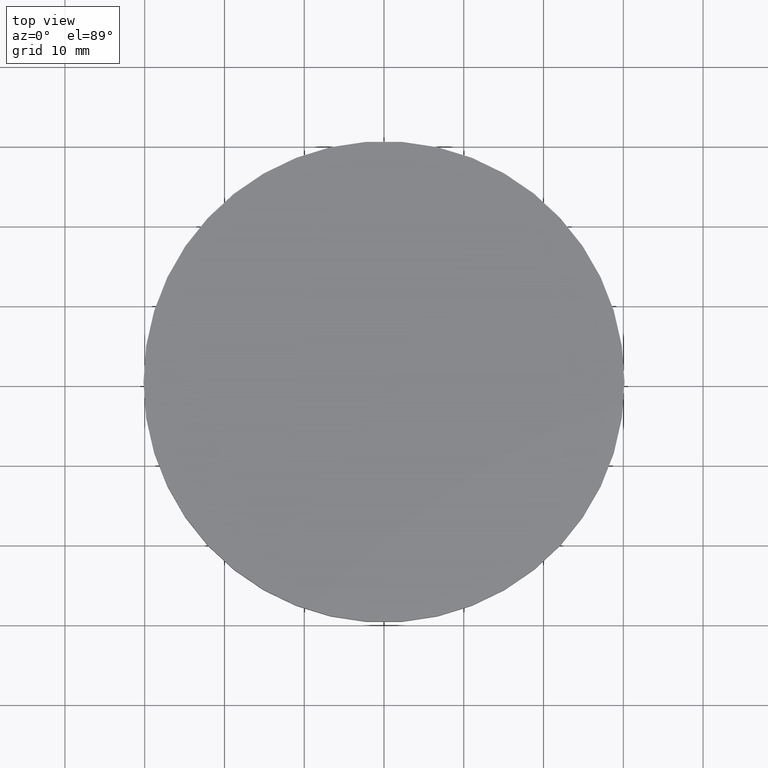
[diagram: clean part render]
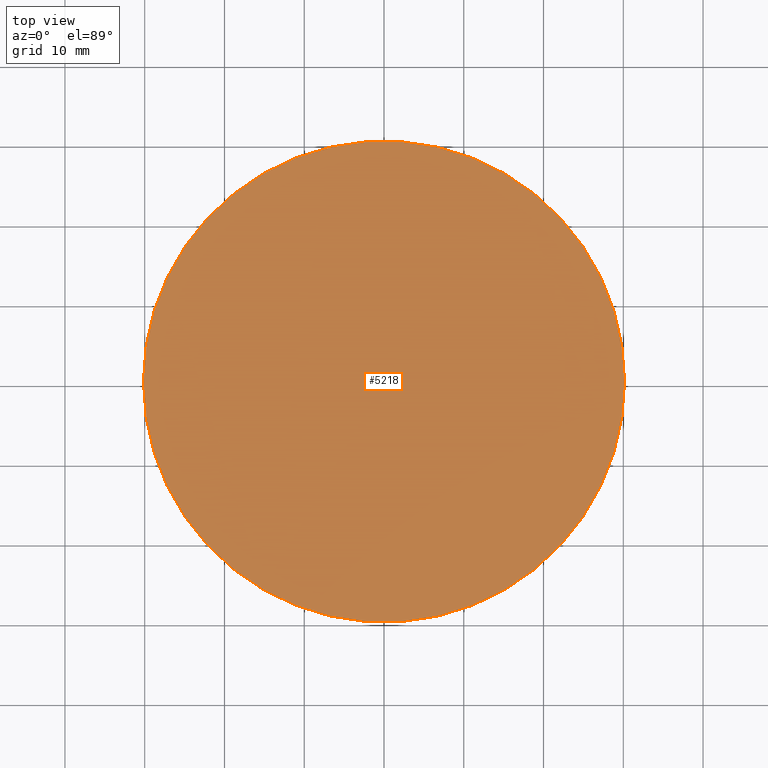
[diagram: same view with one face highlighted and labeled with its STEP entity id]
A machine part, top view. The second image highlights one B-rep face of the part: STEP entity #5218.
In plain terms, the highlighted planar face has unit normal (0, 0, 1).
Its self-contained STEP definition (entity closure, byte-faithful):
#3496 = CARTESIAN_POINT ( 'NONE',  ( -30.14999999999999858, 0.000000000000000000, 4.000000000000000000 ) ) ;
#4321 = EDGE_CURVE ( 'NONE', #13377, #15630, #6696, .T. ) ;
#5218 = ADVANCED_FACE ( 'NONE', ( #24721 ), #7878, .T. ) ;
#6160 = CARTESIAN_POINT ( 'NONE',  ( 30.14999999999999858, 3.692310099429270397E-15, 4.000000000000000000 ) ) ;
#6429 = CARTESIAN_POINT ( 'NONE',  ( 0.000000000000000000, 0.000000000000000000, 4.000000000000000000 ) ) ;
#6696 = CIRCLE ( 'NONE', #13752, 30.14999999999999858 ) ;
#7071 = AXIS2_PLACEMENT_3D ( 'NONE', #18100, #10168, #16401 ) ;
#7168 = DIRECTION ( 'NONE',  ( 0.000000000000000000, 0.000000000000000000, 1.000000000000000000 ) ) ;
#7878 = PLANE ( 'NONE',  #12445 ) ;
#8221 = EDGE_LOOP ( 'NONE', ( #24567, #12584 ) ) ;
#10168 = DIRECTION ( 'NONE',  ( 0.000000000000000000, 0.000000000000000000, 1.000000000000000000 ) ) ;
#12445 = AXIS2_PLACEMENT_3D ( 'NONE', #6429, #13716, #13874 ) ;
#12584 = ORIENTED_EDGE ( 'NONE', *, *, #22633, .T. ) ;
#13377 = VERTEX_POINT ( 'NONE', #3496 ) ;
#13716 = DIRECTION ( 'NONE',  ( 0.000000000000000000, 0.000000000000000000, 1.000000000000000000 ) ) ;
#13752 = AXIS2_PLACEMENT_3D ( 'NONE', #18447, #7168, #14783 ) ;
#13874 = DIRECTION ( 'NONE',  ( 1.000000000000000000, 0.000000000000000000, -0.000000000000000000 ) ) ;
#14783 = DIRECTION ( 'NONE',  ( 1.000000000000000000, 0.000000000000000000, 0.000000000000000000 ) ) ;
#15630 = VERTEX_POINT ( 'NONE', #6160 ) ;
#16401 = DIRECTION ( 'NONE',  ( 1.000000000000000000, 0.000000000000000000, 0.000000000000000000 ) ) ;
#16802 = CIRCLE ( 'NONE', #7071, 30.14999999999999858 ) ;
#18100 = CARTESIAN_POINT ( 'NONE',  ( 0.000000000000000000, 0.000000000000000000, 4.000000000000000000 ) ) ;
#18447 = CARTESIAN_POINT ( 'NONE',  ( 0.000000000000000000, 0.000000000000000000, 4.000000000000000000 ) ) ;
#22633 = EDGE_CURVE ( 'NONE', #15630, #13377, #16802, .T. ) ;
#24567 = ORIENTED_EDGE ( 'NONE', *, *, #4321, .T. ) ;
#24721 = FACE_OUTER_BOUND ( 'NONE', #8221, .T. ) ;